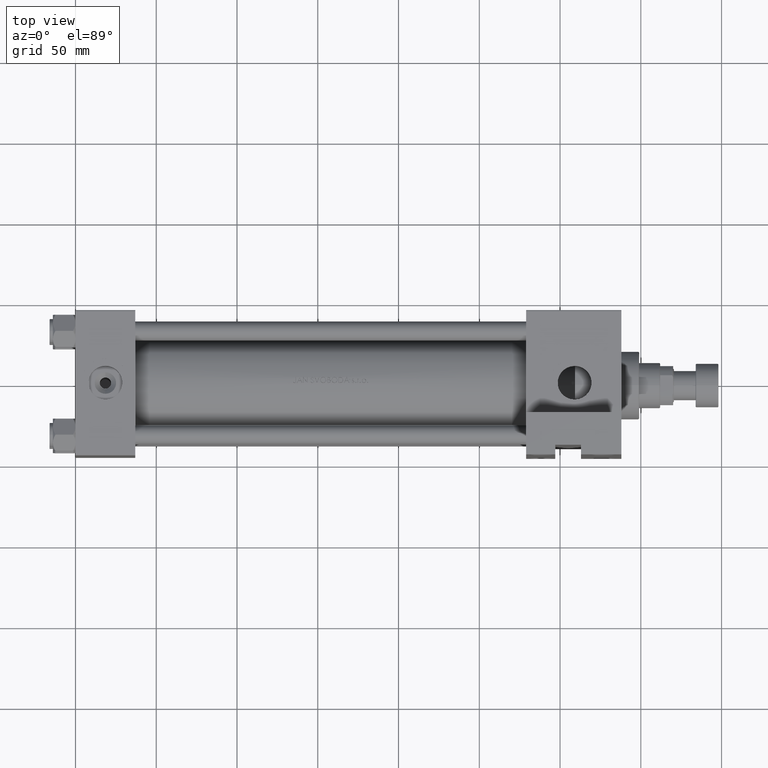
[diagram: clean part render]
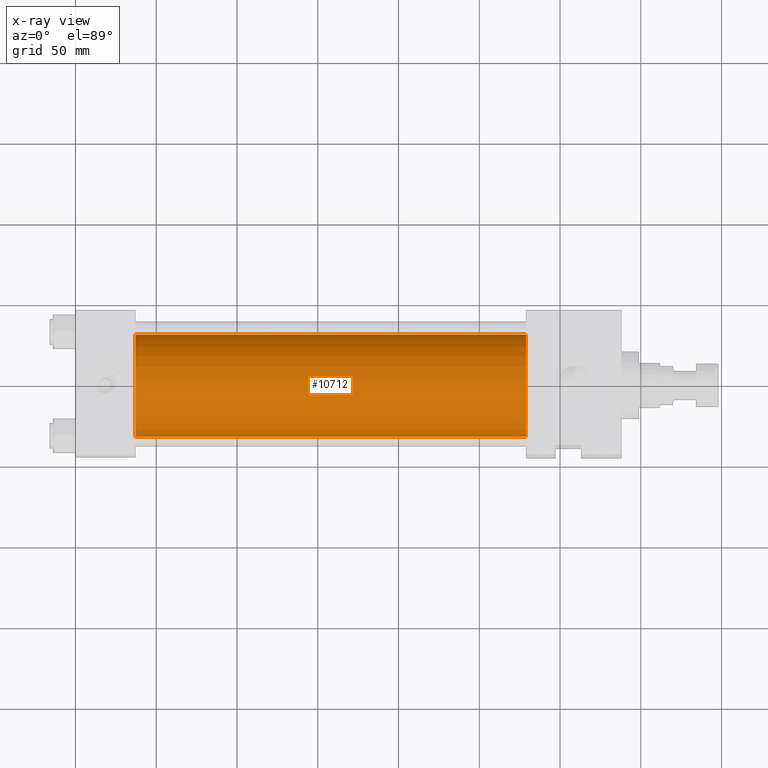
[diagram: x-ray — body ghosted, one internal face saturated and labeled with its STEP entity id]
A machine part, top view, then the same camera in x-ray: the body is ghosted and one INTERNAL B-rep face — a face not visible from any outside direction — is saturated and labeled: STEP entity #10712.
In plain terms, the highlighted cylindrical surface (partial cylindrical patch) has radius 31.5 mm, axis along (-1, -0, 0).
Its self-contained STEP definition (entity closure, byte-faithful):
#971 = DIRECTION ( 'NONE',  ( 1.000000000000000000, 0.000000000000000000, 0.000000000000000000 ) ) ;
#1668 = AXIS2_PLACEMENT_3D ( 'NONE', #48478, #1789, #20557 ) ;
#1789 = DIRECTION ( 'NONE',  ( 1.000000000000000000, 0.000000000000000000, 0.000000000000000000 ) ) ;
#3582 = LINE ( 'NONE', #10177, #15992 ) ;
#5592 = CIRCLE ( 'NONE', #1668, 31.50000000000000000 ) ;
#5924 = DIRECTION ( 'NONE',  ( 0.000000000000000000, 0.000000000000000000, 1.000000000000000000 ) ) ;
#6826 = EDGE_CURVE ( 'NONE', #44424, #29562, #3582, .T. ) ;
#7423 = LINE ( 'NONE', #18836, #10832 ) ;
#9544 = CARTESIAN_POINT ( 'NONE',  ( 37.00000000000000000, 3.857637417314162689E-15, -32.50000000000000711 ) ) ;
#10177 = CARTESIAN_POINT ( 'NONE',  ( 278.9999999999999432, 0.000000000000000000, 30.49999999999999289 ) ) ;
#10712 = ADVANCED_FACE ( 'NONE', ( #19386 ), #34898, .F. ) ;
#10832 = VECTOR ( 'NONE', #26711, 1000.000000000000000 ) ;
#15992 = VECTOR ( 'NONE', #22604, 1000.000000000000000 ) ;
#18339 = ORIENTED_EDGE ( 'NONE', *, *, #33128, .T. ) ;
#18789 = EDGE_CURVE ( 'NONE', #44424, #40410, #5592, .T. ) ;
#18836 = CARTESIAN_POINT ( 'NONE',  ( 278.9999999999999432, 3.857637417314162689E-15, -32.50000000000000711 ) ) ;
#19386 = FACE_OUTER_BOUND ( 'NONE', #45649, .T. ) ;
#20557 = DIRECTION ( 'NONE',  ( 0.000000000000000000, 0.000000000000000000, -1.000000000000000000 ) ) ;
#22604 = DIRECTION ( 'NONE',  ( -1.000000000000000000, -0.000000000000000000, -0.000000000000000000 ) ) ;
#24054 = CARTESIAN_POINT ( 'NONE',  ( 37.00000000000000000, 0.000000000000000000, -1.000000000000007772 ) ) ;
#24124 = CARTESIAN_POINT ( 'NONE',  ( 278.9999999999999432, 0.000000000000000000, 30.49999999999999289 ) ) ;
#26711 = DIRECTION ( 'NONE',  ( -1.000000000000000000, -0.000000000000000000, -0.000000000000000000 ) ) ;
#27617 = DIRECTION ( 'NONE',  ( 0.000000000000000000, 0.000000000000000000, -1.000000000000000000 ) ) ;
#29562 = VERTEX_POINT ( 'NONE', #44076 ) ;
#30413 = CIRCLE ( 'NONE', #41762, 31.50000000000000000 ) ;
#33128 = EDGE_CURVE ( 'NONE', #40410, #33525, #7423, .T. ) ;
#33525 = VERTEX_POINT ( 'NONE', #9544 ) ;
#34898 = CYLINDRICAL_SURFACE ( 'NONE', #42944, 31.50000000000000000 ) ;
#36799 = EDGE_CURVE ( 'NONE', #29562, #33525, #30413, .T. ) ;
#40410 = VERTEX_POINT ( 'NONE', #46596 ) ;
#40701 = DIRECTION ( 'NONE',  ( -1.000000000000000000, -0.000000000000000000, -0.000000000000000000 ) ) ;
#40954 = CARTESIAN_POINT ( 'NONE',  ( 278.9999999999999432, 0.000000000000000000, -1.000000000000007772 ) ) ;
#41762 = AXIS2_PLACEMENT_3D ( 'NONE', #24054, #971, #27617 ) ;
#42117 = ORIENTED_EDGE ( 'NONE', *, *, #6826, .F. ) ;
#42944 = AXIS2_PLACEMENT_3D ( 'NONE', #40954, #40701, #5924 ) ;
#43136 = ORIENTED_EDGE ( 'NONE', *, *, #36799, .F. ) ;
#44076 = CARTESIAN_POINT ( 'NONE',  ( 37.00000000000000000, 0.000000000000000000, 30.49999999999999289 ) ) ;
#44424 = VERTEX_POINT ( 'NONE', #24124 ) ;
#45649 = EDGE_LOOP ( 'NONE', ( #46327, #18339, #43136, #42117 ) ) ;
#46327 = ORIENTED_EDGE ( 'NONE', *, *, #18789, .T. ) ;
#46596 = CARTESIAN_POINT ( 'NONE',  ( 278.9999999999999432, 3.857637417314162689E-15, -32.50000000000000711 ) ) ;
#48478 = CARTESIAN_POINT ( 'NONE',  ( 278.9999999999999432, 0.000000000000000000, -1.000000000000007772 ) ) ;